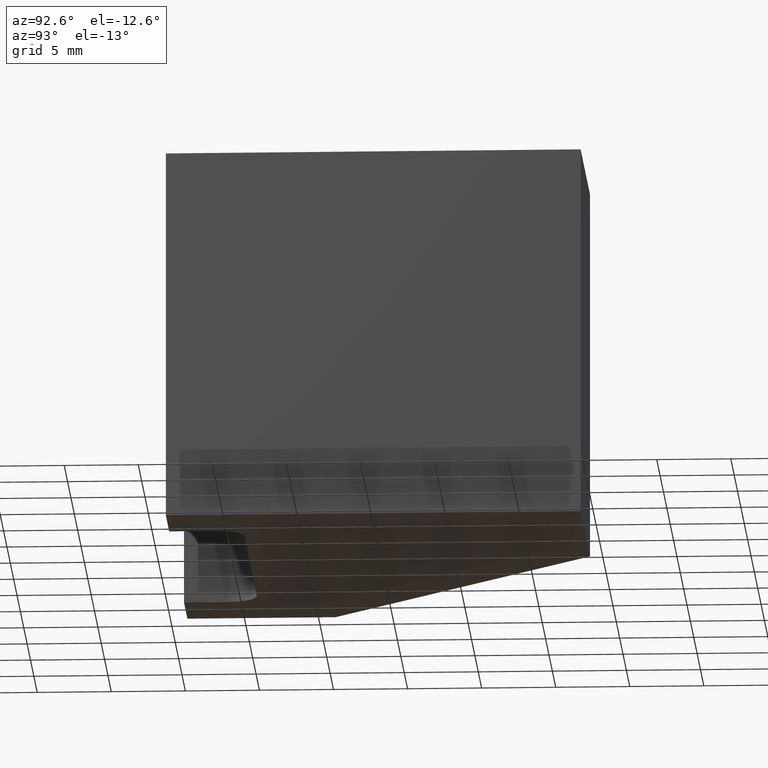
[diagram: clean part render]
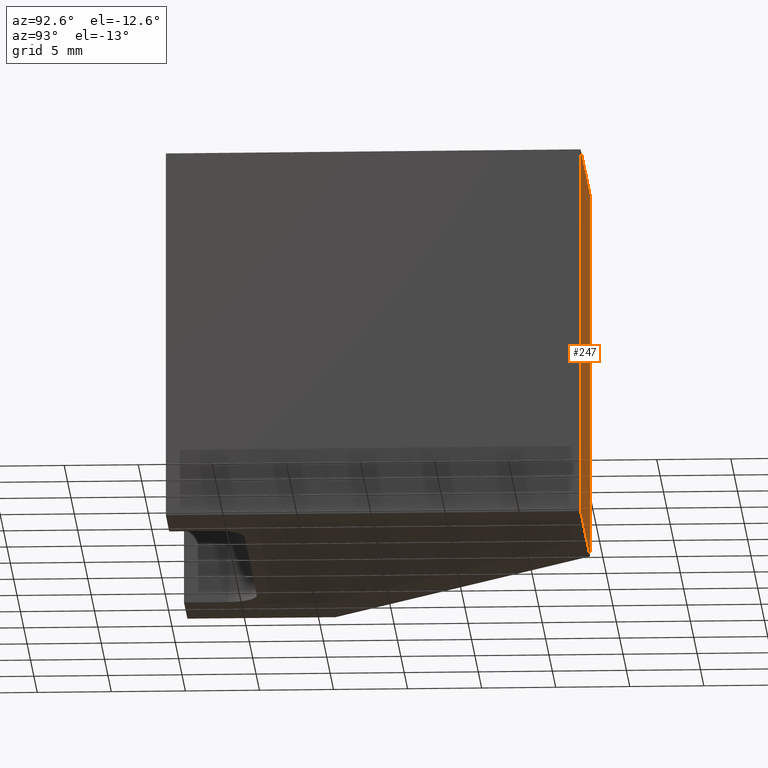
[diagram: same view with one face highlighted and labeled with its STEP entity id]
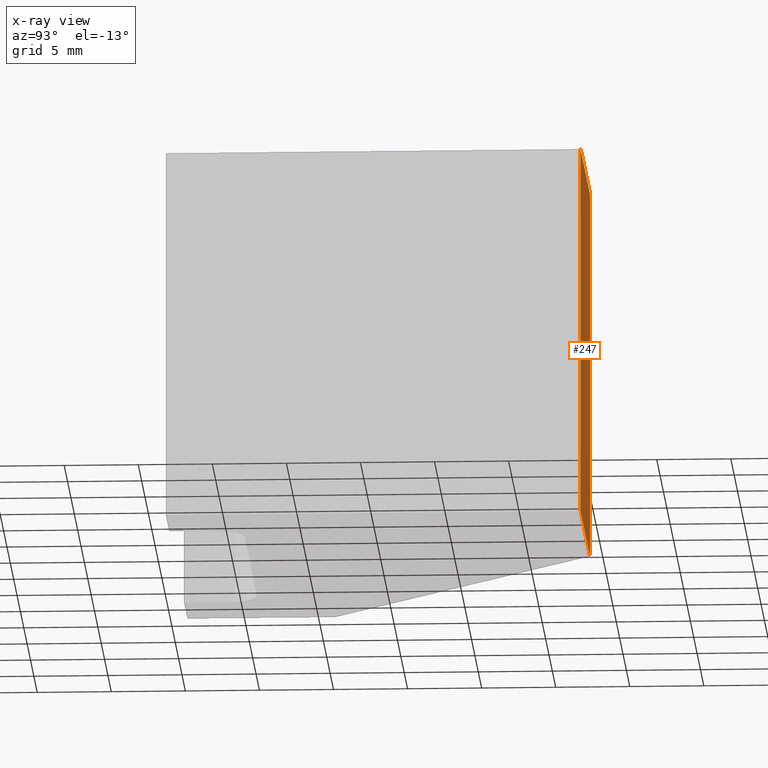
[diagram: x-ray of the same camera — body ghosted, the highlighted face saturated]
A machine part, auxiliary view. The second image highlights one B-rep face of the part: STEP entity #247.
The next image is the same camera in x-ray: the body ghosted, the highlighted face saturated — about 0% of this face is hidden behind the body in this view.
In plain terms, the highlighted planar face has unit normal (0, 1, 0).
Its self-contained STEP definition (entity closure, byte-faithful):
#27=FACE_OUTER_BOUND('',#40,.T.);
#40=EDGE_LOOP('',(#204,#205,#206,#207));
#56=LINE('',#379,#85);
#71=LINE('',#413,#100);
#72=LINE('',#416,#101);
#73=LINE('',#417,#102);
#85=VECTOR('',#307,10.);
#100=VECTOR('',#342,10.);
#101=VECTOR('',#345,10.);
#102=VECTOR('',#346,10.);
#107=VERTEX_POINT('',#359);
#116=VERTEX_POINT('',#377);
#125=VERTEX_POINT('',#411);
#126=VERTEX_POINT('',#415);
#138=EDGE_CURVE('',#107,#116,#56,.T.);
#155=EDGE_CURVE('',#125,#116,#71,.T.);
#156=EDGE_CURVE('',#125,#126,#72,.T.);
#157=EDGE_CURVE('',#126,#107,#73,.T.);
#204=ORIENTED_EDGE('',*,*,#156,.T.);
#205=ORIENTED_EDGE('',*,*,#157,.T.);
#206=ORIENTED_EDGE('',*,*,#138,.T.);
#207=ORIENTED_EDGE('',*,*,#155,.F.);
#234=PLANE('',#287);
#247=ADVANCED_FACE('',(#27),#234,.T.);
#287=AXIS2_PLACEMENT_3D('',#414,#343,#344);
#307=DIRECTION('',(-1.,3.1720657846433E-16,0.));
#342=DIRECTION('',(0.,0.,-1.));
#343=DIRECTION('center_axis',(3.1720657846433E-16,1.,0.));
#344=DIRECTION('ref_axis',(0.,0.,1.));
#345=DIRECTION('',(1.,-3.1720657846433E-16,0.));
#346=DIRECTION('',(0.,0.,-1.));
#359=CARTESIAN_POINT('',(16.,14.,-12.5));
#377=CARTESIAN_POINT('',(2.00000000000001,14.,-12.5));
#379=CARTESIAN_POINT('',(2.00000000000001,14.,-12.5));
#411=CARTESIAN_POINT('',(2.00000000000001,14.,12.5));
#413=CARTESIAN_POINT('',(2.00000000000001,14.,0.));
#414=CARTESIAN_POINT('Origin',(2.00000000000001,14.,0.));
#415=CARTESIAN_POINT('',(16.,14.,12.5));
#416=CARTESIAN_POINT('',(2.00000000000001,14.,12.5));
#417=CARTESIAN_POINT('',(16.,14.,0.));